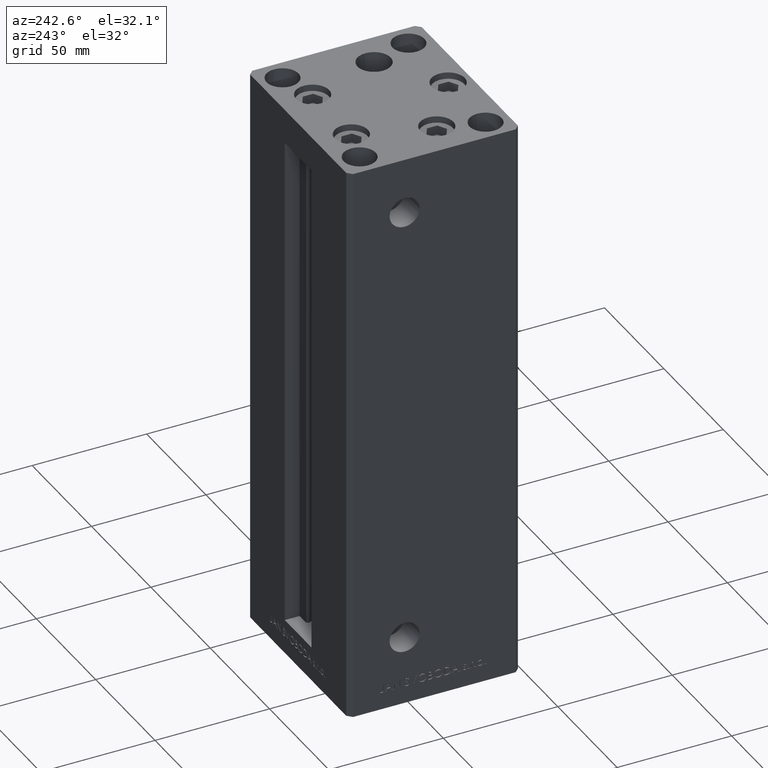
[diagram: clean part render]
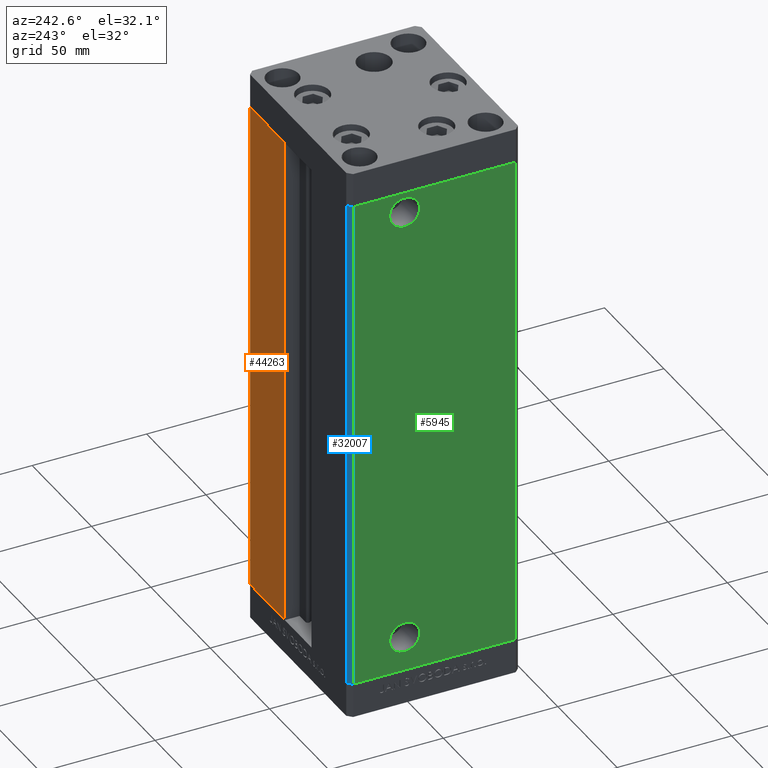
[diagram: same view with three faces highlighted in distinct colors, each labeled with its STEP entity id]
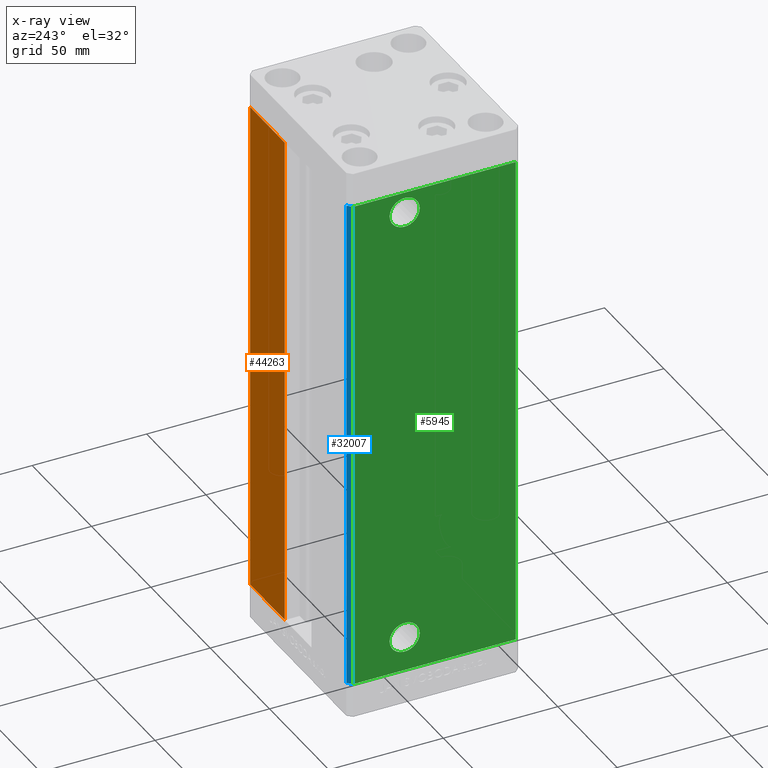
[diagram: x-ray of the same camera — body ghosted, the three highlighted faces saturated]
A machine part, auxiliary view with three faces highlighted in distinct colors.
The next image is the same camera in x-ray (body ghosted, the three faces saturated) — at least one of them is partly hidden behind the body in this view.
Their STEP definitions:

[orange] entity #44263 — the highlighted planar face has unit normal (-0, -1, 0).
#2196 = DIRECTION ( 'NONE',  ( -2.372271420139223824E-16, -1.000000000000000000, 0.000000000000000000 ) ) ;
#3880 = VECTOR ( 'NONE', #31586, 1000.000000000000000 ) ;
#5884 = VECTOR ( 'NONE', #33547, 1000.000000000000000 ) ;
#6126 = ORIENTED_EDGE ( 'NONE', *, *, #8061, .T. ) ;
#8061 = EDGE_CURVE ( 'NONE', #38577, #24778, #44605, .T. ) ;
#8170 = EDGE_CURVE ( 'NONE', #24778, #41996, #29262, .T. ) ;
#8453 = CARTESIAN_POINT ( 'NONE',  ( -11.25000000000000000, 37.50000000000000000, 218.5000000000000000 ) ) ;
#11724 = LINE ( 'NONE', #8453, #3880 ) ;
#13522 = DIRECTION ( 'NONE',  ( 1.000000000000000000, -2.372271420139223824E-16, 0.000000000000000000 ) ) ;
#13775 = CARTESIAN_POINT ( 'NONE',  ( -11.25000000000000000, 37.50000000000000000, 218.5000000000000000 ) ) ;
#14448 = CARTESIAN_POINT ( 'NONE',  ( 40.50000000000000000, 37.50000000000000711, 218.5000000000000000 ) ) ;
#14554 = CARTESIAN_POINT ( 'NONE',  ( 11.25000000000000000, 37.50000000000000000, 0.000000000000000000 ) ) ;
#20064 = VECTOR ( 'NONE', #22243, 1000.000000000000000 ) ;
#21346 = CARTESIAN_POINT ( 'NONE',  ( 40.50000000000000000, 37.50000000000000711, 218.5000000000000000 ) ) ;
#22243 = DIRECTION ( 'NONE',  ( -0.000000000000000000, -0.000000000000000000, -1.000000000000000000 ) ) ;
#24359 = FACE_OUTER_BOUND ( 'NONE', #36925, .T. ) ;
#24778 = VERTEX_POINT ( 'NONE', #14554 ) ;
#24795 = VERTEX_POINT ( 'NONE', #21346 ) ;
#26005 = CARTESIAN_POINT ( 'NONE',  ( 11.25000000000000000, 37.50000000000000000, 0.000000000000000000 ) ) ;
#26489 = DIRECTION ( 'NONE',  ( -1.000000000000000000, 2.372271420139223331E-16, 0.000000000000000000 ) ) ;
#28120 = PLANE ( 'NONE',  #43990 ) ;
#28365 = ORIENTED_EDGE ( 'NONE', *, *, #29629, .T. ) ;
#29262 = LINE ( 'NONE', #26005, #5884 ) ;
#29450 = CARTESIAN_POINT ( 'NONE',  ( 11.24999999999999289, 37.50000000000000000, 218.5000000000000000 ) ) ;
#29629 = EDGE_CURVE ( 'NONE', #41996, #24795, #11724, .T. ) ;
#30265 = CARTESIAN_POINT ( 'NONE',  ( -11.25000000000000000, 37.50000000000000000, 0.000000000000000000 ) ) ;
#31586 = DIRECTION ( 'NONE',  ( 1.000000000000000000, 0.000000000000000000, 0.000000000000000000 ) ) ;
#31631 = ORIENTED_EDGE ( 'NONE', *, *, #8170, .T. ) ;
#32635 = ORIENTED_EDGE ( 'NONE', *, *, #48646, .T. ) ;
#33547 = DIRECTION ( 'NONE',  ( -0.000000000000000000, -0.000000000000000000, 1.000000000000000000 ) ) ;
#33560 = LINE ( 'NONE', #14448, #20064 ) ;
#36925 = EDGE_LOOP ( 'NONE', ( #6126, #31631, #28365, #32635 ) ) ;
#37661 = CARTESIAN_POINT ( 'NONE',  ( 40.50000000000000000, 37.50000000000000711, 0.000000000000000000 ) ) ;
#38577 = VERTEX_POINT ( 'NONE', #37661 ) ;
#41996 = VERTEX_POINT ( 'NONE', #29450 ) ;
#43990 = AXIS2_PLACEMENT_3D ( 'NONE', #13775, #2196, #13522 ) ;
#44263 = ADVANCED_FACE ( 'NONE', ( #24359 ), #28120, .F. ) ;
#44605 = LINE ( 'NONE', #30265, #49246 ) ;
#48646 = EDGE_CURVE ( 'NONE', #24795, #38577, #33560, .T. ) ;
#49246 = VECTOR ( 'NONE', #26489, 1000.000000000000000 ) ;

[blue] entity #32007 — the highlighted planar face has unit normal (0.7071, -0.7071, 0).
#658 = EDGE_CURVE ( 'NONE', #23526, #31311, #17789, .T. ) ;
#1447 = VERTEX_POINT ( 'NONE', #29412 ) ;
#3907 = CARTESIAN_POINT ( 'NONE',  ( -42.50000000000000711, 35.50000000000001421, 218.5000000000000000 ) ) ;
#4188 = EDGE_CURVE ( 'NONE', #1447, #23526, #23613, .T. ) ;
#5063 = CARTESIAN_POINT ( 'NONE',  ( -42.50000000000000711, 35.50000000000001421, 0.000000000000000000 ) ) ;
#6171 = EDGE_CURVE ( 'NONE', #1447, #10169, #17756, .T. ) ;
#6574 = VECTOR ( 'NONE', #16567, 1000.000000000000000 ) ;
#7137 = EDGE_CURVE ( 'NONE', #10169, #31311, #8193, .T. ) ;
#7846 = DIRECTION ( 'NONE',  ( 0.7071067811865450192, -0.7071067811865500152, 0.000000000000000000 ) ) ;
#8102 = DIRECTION ( 'NONE',  ( 0.7071067811865500152, 0.7071067811865450192, 0.000000000000000000 ) ) ;
#8193 = LINE ( 'NONE', #3907, #32349 ) ;
#8664 = ORIENTED_EDGE ( 'NONE', *, *, #7137, .F. ) ;
#10169 = VERTEX_POINT ( 'NONE', #27583 ) ;
#10957 = DIRECTION ( 'NONE',  ( -0.7071067811865500152, -0.7071067811865451302, 0.000000000000000000 ) ) ;
#11460 = ORIENTED_EDGE ( 'NONE', *, *, #6171, .F. ) ;
#15982 = DIRECTION ( 'NONE',  ( -0.000000000000000000, -0.000000000000000000, -1.000000000000000000 ) ) ;
#16567 = DIRECTION ( 'NONE',  ( -0.000000000000000000, -0.000000000000000000, -1.000000000000000000 ) ) ;
#17756 = LINE ( 'NONE', #44651, #33933 ) ;
#17789 = LINE ( 'NONE', #48445, #44176 ) ;
#18192 = CARTESIAN_POINT ( 'NONE',  ( -40.50000000000000000, 37.50000000000000711, 0.000000000000000000 ) ) ;
#20165 = FACE_OUTER_BOUND ( 'NONE', #29258, .T. ) ;
#23526 = VERTEX_POINT ( 'NONE', #18192 ) ;
#23613 = LINE ( 'NONE', #27618, #6574 ) ;
#25637 = AXIS2_PLACEMENT_3D ( 'NONE', #42295, #7846, #8102 ) ;
#26950 = PLANE ( 'NONE',  #25637 ) ;
#27583 = CARTESIAN_POINT ( 'NONE',  ( -42.50000000000000711, 35.50000000000001421, 218.5000000000000000 ) ) ;
#27618 = CARTESIAN_POINT ( 'NONE',  ( -40.50000000000000000, 37.50000000000000711, 218.5000000000000000 ) ) ;
#29258 = EDGE_LOOP ( 'NONE', ( #42853, #8664, #11460, #47138 ) ) ;
#29412 = CARTESIAN_POINT ( 'NONE',  ( -40.50000000000000000, 37.50000000000000711, 218.5000000000000000 ) ) ;
#31311 = VERTEX_POINT ( 'NONE', #5063 ) ;
#32007 = ADVANCED_FACE ( 'NONE', ( #20165 ), #26950, .F. ) ;
#32349 = VECTOR ( 'NONE', #15982, 1000.000000000000000 ) ;
#33128 = DIRECTION ( 'NONE',  ( -0.7071067811865500152, -0.7071067811865451302, 0.000000000000000000 ) ) ;
#33933 = VECTOR ( 'NONE', #10957, 1000.000000000000114 ) ;
#42295 = CARTESIAN_POINT ( 'NONE',  ( -40.50000000000000000, 37.50000000000000711, 218.5000000000000000 ) ) ;
#42853 = ORIENTED_EDGE ( 'NONE', *, *, #658, .T. ) ;
#44176 = VECTOR ( 'NONE', #33128, 1000.000000000000114 ) ;
#44651 = CARTESIAN_POINT ( 'NONE',  ( -40.50000000000000000, 37.50000000000000711, 218.5000000000000000 ) ) ;
#47138 = ORIENTED_EDGE ( 'NONE', *, *, #4188, .T. ) ;
#48445 = CARTESIAN_POINT ( 'NONE',  ( -40.50000000000000000, 37.50000000000000711, 0.000000000000000000 ) ) ;

[green] entity #5945 — the highlighted planar face has unit normal (1, 0, 0).
#524 = DIRECTION ( 'NONE',  ( 2.931927001650941360E-16, -1.000000000000000000, 0.000000000000000000 ) ) ;
#767 = LINE ( 'NONE', #7575, #16958 ) ;
#1733 = FACE_BOUND ( 'NONE', #9410, .T. ) ;
#2229 = CARTESIAN_POINT ( 'NONE',  ( -42.49999999999999289, 12.99999999999998579, 14.99999999999998579 ) ) ;
#2230 = CARTESIAN_POINT ( 'NONE',  ( -42.49999999999999289, 19.57999999999998764, 14.99999999999998579 ) ) ;
#3907 = CARTESIAN_POINT ( 'NONE',  ( -42.50000000000000711, 35.50000000000001421, 218.5000000000000000 ) ) ;
#4421 = CARTESIAN_POINT ( 'NONE',  ( -42.49999999999998579, -35.50000000000000711, 0.000000000000000000 ) ) ;
#4763 = VECTOR ( 'NONE', #5785, 1000.000000000000000 ) ;
#4863 = ORIENTED_EDGE ( 'NONE', *, *, #39741, .F. ) ;
#5063 = CARTESIAN_POINT ( 'NONE',  ( -42.50000000000000711, 35.50000000000001421, 0.000000000000000000 ) ) ;
#5785 = DIRECTION ( 'NONE',  ( -0.000000000000000000, -0.000000000000000000, -1.000000000000000000 ) ) ;
#5945 = ADVANCED_FACE ( 'NONE', ( #44213, #1733, #9045 ), #36189, .F. ) ;
#6313 = DIRECTION ( 'NONE',  ( 2.931927001650941360E-16, -1.000000000000000000, 0.000000000000000000 ) ) ;
#7137 = EDGE_CURVE ( 'NONE', #10169, #31311, #8193, .T. ) ;
#7575 = CARTESIAN_POINT ( 'NONE',  ( -42.50000000000000711, 35.50000000000001421, 218.5000000000000000 ) ) ;
#8193 = LINE ( 'NONE', #3907, #32349 ) ;
#9045 = FACE_OUTER_BOUND ( 'NONE', #41381, .T. ) ;
#9195 = CARTESIAN_POINT ( 'NONE',  ( -42.49999999999999289, 12.99999999999998579, 14.99999999999998579 ) ) ;
#9410 = EDGE_LOOP ( 'NONE', ( #38845, #43333 ) ) ;
#9840 = LINE ( 'NONE', #13367, #30104 ) ;
#10169 = VERTEX_POINT ( 'NONE', #27583 ) ;
#10774 = EDGE_CURVE ( 'NONE', #15859, #27881, #27654, .T. ) ;
#11429 = DIRECTION ( 'NONE',  ( 0.000000000000000000, -1.000000000000000000, 0.000000000000000000 ) ) ;
#11477 = CARTESIAN_POINT ( 'NONE',  ( -42.49999999999999289, 6.419999999999983942, 209.5000000000000000 ) ) ;
#12140 = EDGE_CURVE ( 'NONE', #42247, #24750, #29316, .T. ) ;
#13302 = CARTESIAN_POINT ( 'NONE',  ( -42.50000000000000711, 35.50000000000001421, 218.5000000000000000 ) ) ;
#13367 = CARTESIAN_POINT ( 'NONE',  ( -42.50000000000000711, 35.50000000000001421, 0.000000000000000000 ) ) ;
#15677 = EDGE_CURVE ( 'NONE', #31311, #39662, #9840, .T. ) ;
#15712 = VERTEX_POINT ( 'NONE', #48543 ) ;
#15859 = VERTEX_POINT ( 'NONE', #2230 ) ;
#15982 = DIRECTION ( 'NONE',  ( -0.000000000000000000, -0.000000000000000000, -1.000000000000000000 ) ) ;
#16958 = VECTOR ( 'NONE', #524, 1000.000000000000000 ) ;
#17584 = AXIS2_PLACEMENT_3D ( 'NONE', #9195, #40598, #25264 ) ;
#17863 = EDGE_CURVE ( 'NONE', #24750, #42247, #40616, .T. ) ;
#18691 = DIRECTION ( 'NONE',  ( 0.000000000000000000, -1.000000000000000000, 0.000000000000000000 ) ) ;
#19163 = CIRCLE ( 'NONE', #17584, 6.580000000000002736 ) ;
#19665 = AXIS2_PLACEMENT_3D ( 'NONE', #42842, #26510, #11429 ) ;
#20802 = ORIENTED_EDGE ( 'NONE', *, *, #46653, .F. ) ;
#21698 = ORIENTED_EDGE ( 'NONE', *, *, #48281, .F. ) ;
#24274 = AXIS2_PLACEMENT_3D ( 'NONE', #13302, #32419, #29126 ) ;
#24750 = VERTEX_POINT ( 'NONE', #37431 ) ;
#24993 = CARTESIAN_POINT ( 'NONE',  ( -42.49999999999999289, 13.00000000000000000, 209.5000000000000000 ) ) ;
#25264 = DIRECTION ( 'NONE',  ( 0.000000000000000000, -1.000000000000000000, 0.000000000000000000 ) ) ;
#26510 = DIRECTION ( 'NONE',  ( -1.000000000000000000, -2.275047181608927644E-16, 0.000000000000000000 ) ) ;
#27583 = CARTESIAN_POINT ( 'NONE',  ( -42.50000000000000711, 35.50000000000001421, 218.5000000000000000 ) ) ;
#27654 = CIRCLE ( 'NONE', #35720, 6.580000000000002736 ) ;
#27881 = VERTEX_POINT ( 'NONE', #38564 ) ;
#28889 = DIRECTION ( 'NONE',  ( 0.000000000000000000, -1.000000000000000000, 0.000000000000000000 ) ) ;
#29126 = DIRECTION ( 'NONE',  ( -2.931927001650941360E-16, 1.000000000000000000, 0.000000000000000000 ) ) ;
#29316 = CIRCLE ( 'NONE', #19665, 6.580000000000015170 ) ;
#30104 = VECTOR ( 'NONE', #6313, 1000.000000000000000 ) ;
#31311 = VERTEX_POINT ( 'NONE', #5063 ) ;
#32349 = VECTOR ( 'NONE', #15982, 1000.000000000000000 ) ;
#32419 = DIRECTION ( 'NONE',  ( 1.000000000000000000, 2.931927001650941360E-16, -0.000000000000000000 ) ) ;
#35161 = ORIENTED_EDGE ( 'NONE', *, *, #15677, .T. ) ;
#35720 = AXIS2_PLACEMENT_3D ( 'NONE', #2229, #44473, #28889 ) ;
#36189 = PLANE ( 'NONE',  #24274 ) ;
#36507 = ORIENTED_EDGE ( 'NONE', *, *, #7137, .T. ) ;
#37431 = CARTESIAN_POINT ( 'NONE',  ( -42.49999999999999289, 19.58000000000001251, 209.5000000000000000 ) ) ;
#38564 = CARTESIAN_POINT ( 'NONE',  ( -42.49999999999999289, 6.419999999999983054, 14.99999999999998579 ) ) ;
#38845 = ORIENTED_EDGE ( 'NONE', *, *, #12140, .F. ) ;
#39662 = VERTEX_POINT ( 'NONE', #4421 ) ;
#39741 = EDGE_CURVE ( 'NONE', #10169, #15712, #767, .T. ) ;
#40334 = DIRECTION ( 'NONE',  ( -1.000000000000000000, -2.275047181608927644E-16, 0.000000000000000000 ) ) ;
#40598 = DIRECTION ( 'NONE',  ( -1.000000000000000000, -2.275047181608927644E-16, 0.000000000000000000 ) ) ;
#40616 = CIRCLE ( 'NONE', #42205, 6.580000000000015170 ) ;
#41381 = EDGE_LOOP ( 'NONE', ( #35161, #21698, #4863, #36507 ) ) ;
#42205 = AXIS2_PLACEMENT_3D ( 'NONE', #24993, #40334, #18691 ) ;
#42247 = VERTEX_POINT ( 'NONE', #11477 ) ;
#42842 = CARTESIAN_POINT ( 'NONE',  ( -42.49999999999999289, 13.00000000000000000, 209.5000000000000000 ) ) ;
#43333 = ORIENTED_EDGE ( 'NONE', *, *, #17863, .F. ) ;
#43994 = CARTESIAN_POINT ( 'NONE',  ( -42.49999999999998579, -35.50000000000000711, 218.5000000000000000 ) ) ;
#44213 = FACE_BOUND ( 'NONE', #45085, .T. ) ;
#44473 = DIRECTION ( 'NONE',  ( -1.000000000000000000, -2.275047181608927644E-16, 0.000000000000000000 ) ) ;
#45085 = EDGE_LOOP ( 'NONE', ( #20802, #46336 ) ) ;
#46336 = ORIENTED_EDGE ( 'NONE', *, *, #10774, .F. ) ;
#46653 = EDGE_CURVE ( 'NONE', #27881, #15859, #19163, .T. ) ;
#47769 = LINE ( 'NONE', #43994, #4763 ) ;
#48281 = EDGE_CURVE ( 'NONE', #15712, #39662, #47769, .T. ) ;
#48543 = CARTESIAN_POINT ( 'NONE',  ( -42.49999999999998579, -35.50000000000000711, 218.5000000000000000 ) ) ;